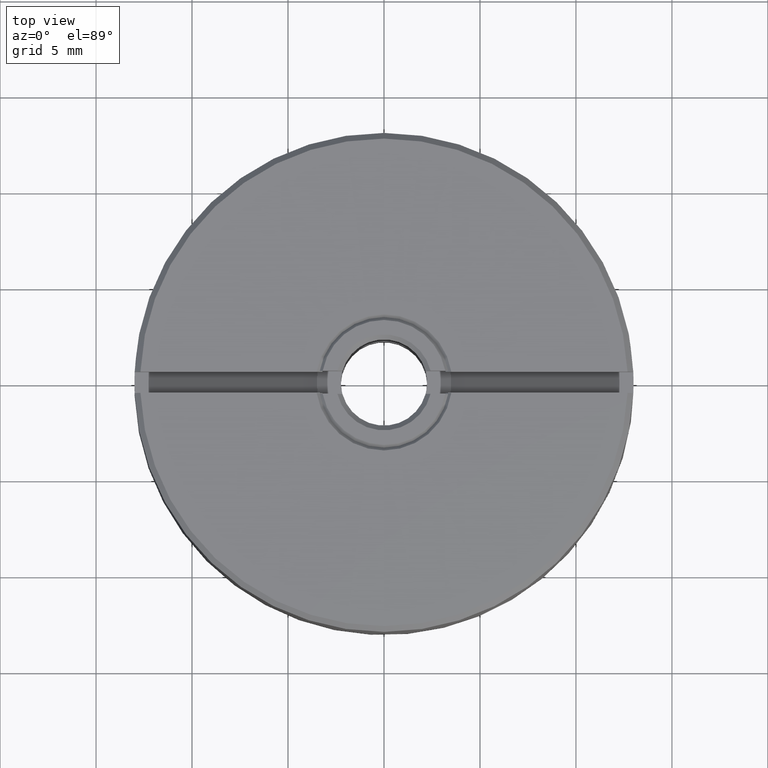
[diagram: clean part render]
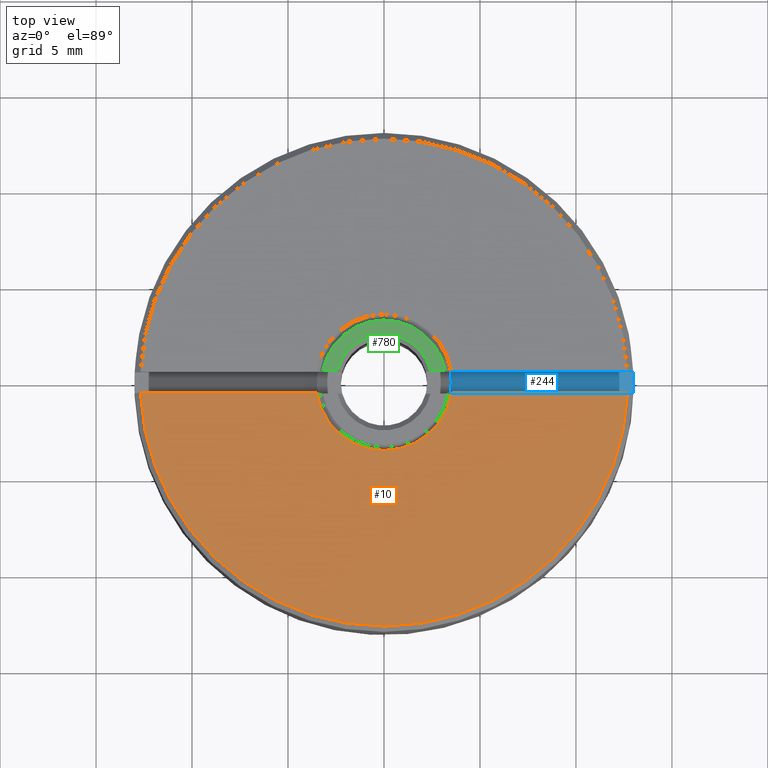
[diagram: same view with three faces highlighted in distinct colors, each labeled with its STEP entity id]
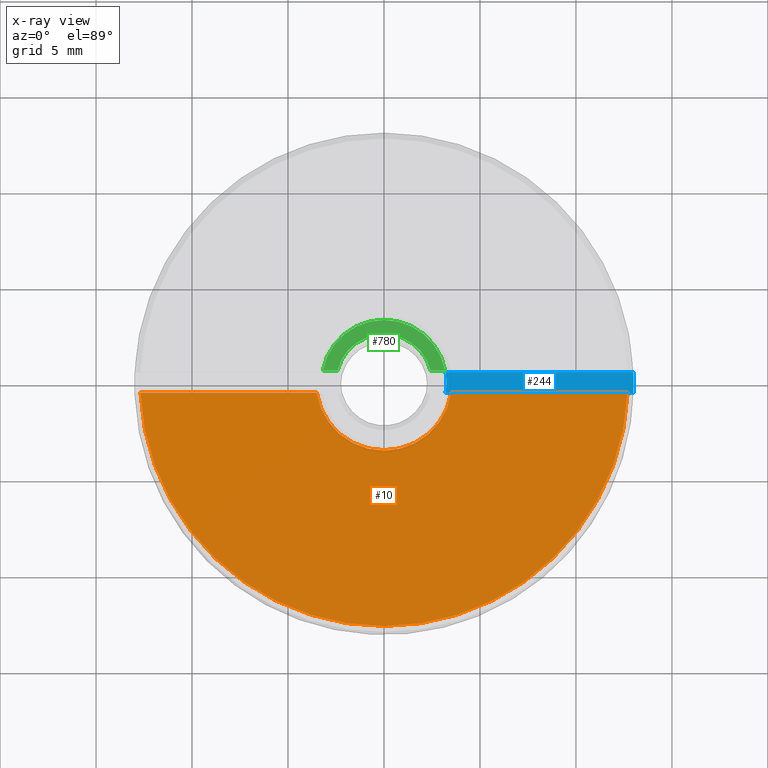
[diagram: x-ray of the same camera — body ghosted, the three highlighted faces saturated]
A machine part, top view with three faces highlighted in distinct colors.
The next image is the same camera in x-ray (body ghosted, the three faces saturated) — at least one of them is partly hidden behind the body in this view.
Their STEP definitions:

[orange] entity #10 — the highlighted planar face has unit normal (0, 0, 1).
#10 = ADVANCED_FACE ( 'NONE', ( #419 ), #764, .T. ) ;
#20 = EDGE_CURVE ( 'NONE', #755, #1031, #1269, .T. ) ;
#24 = CARTESIAN_POINT ( 'NONE',  ( 0.000000000000000000, 0.000000000000000000, 5.000000000000000000 ) ) ;
#50 = ORIENTED_EDGE ( 'NONE', *, *, #1310, .F. ) ;
#51 = CARTESIAN_POINT ( 'NONE',  ( 0.000000000000000000, -0.5500000000000000444, 5.000000000000000000 ) ) ;
#131 = ORIENTED_EDGE ( 'NONE', *, *, #561, .T. ) ;
#211 = VECTOR ( 'NONE', #1148, 1000.000000000000000 ) ;
#289 = AXIS2_PLACEMENT_3D ( 'NONE', #706, #1570, #463 ) ;
#314 = CIRCLE ( 'NONE', #423, 3.550000000075214768 ) ;
#381 = EDGE_LOOP ( 'NONE', ( #416, #131, #1395, #50 ) ) ;
#416 = ORIENTED_EDGE ( 'NONE', *, *, #20, .T. ) ;
#419 = FACE_OUTER_BOUND ( 'NONE', #381, .T. ) ;
#421 = VERTEX_POINT ( 'NONE', #1292 ) ;
#423 = AXIS2_PLACEMENT_3D ( 'NONE', #596, #1592, #833 ) ;
#463 = DIRECTION ( 'NONE',  ( -1.000000000000000000, 0.000000000000000000, 0.000000000000000000 ) ) ;
#496 = VERTEX_POINT ( 'NONE', #686 ) ;
#561 = EDGE_CURVE ( 'NONE', #1031, #421, #314, .T. ) ;
#596 = CARTESIAN_POINT ( 'NONE',  ( 0.000000000000000000, 0.000000000000000000, 4.999999999995452526 ) ) ;
#624 = AXIS2_PLACEMENT_3D ( 'NONE', #24, #888, #788 ) ;
#631 = CARTESIAN_POINT ( 'NONE',  ( 12.68808496188450441, -0.5500000000000000444, 5.000000000000001776 ) ) ;
#686 = CARTESIAN_POINT ( 'NONE',  ( -12.68808496188450619, -0.5500000000000000444, 5.000000000000000888 ) ) ;
#706 = CARTESIAN_POINT ( 'NONE',  ( 0.000000000000000000, 0.000000000000000000, 5.000000000000001776 ) ) ;
#755 = VERTEX_POINT ( 'NONE', #631 ) ;
#764 = PLANE ( 'NONE',  #624 ) ;
#788 = DIRECTION ( 'NONE',  ( 1.000000000000000000, 0.000000000000000000, -0.000000000000000000 ) ) ;
#799 = DIRECTION ( 'NONE',  ( -1.000000000000000000, -0.000000000000000000, 0.000000000000000000 ) ) ;
#830 = EDGE_CURVE ( 'NONE', #421, #496, #1512, .T. ) ;
#833 = DIRECTION ( 'NONE',  ( 1.000000000000000000, 0.000000000000000000, 0.000000000000000000 ) ) ;
#888 = DIRECTION ( 'NONE',  ( 0.000000000000000000, 0.000000000000000000, 1.000000000000000000 ) ) ;
#918 = CARTESIAN_POINT ( 'NONE',  ( 0.000000000000000000, -0.5500000000000000444, 5.000000000000000000 ) ) ;
#952 = CIRCLE ( 'NONE', #289, 12.69999999999998863 ) ;
#970 = VECTOR ( 'NONE', #799, 1000.000000000000000 ) ;
#1031 = VERTEX_POINT ( 'NONE', #1055 ) ;
#1055 = CARTESIAN_POINT ( 'NONE',  ( 3.507135583411575830, -0.5500000000000000444, 4.999999999981033838 ) ) ;
#1148 = DIRECTION ( 'NONE',  ( -1.000000000000000000, -0.000000000000000000, 0.000000000000000000 ) ) ;
#1269 = LINE ( 'NONE', #918, #970 ) ;
#1292 = CARTESIAN_POINT ( 'NONE',  ( -3.507135583411575830, -0.5500000000000000444, 4.999999999981033838 ) ) ;
#1310 = EDGE_CURVE ( 'NONE', #755, #496, #952, .T. ) ;
#1395 = ORIENTED_EDGE ( 'NONE', *, *, #830, .T. ) ;
#1512 = LINE ( 'NONE', #51, #211 ) ;
#1570 = DIRECTION ( 'NONE',  ( 0.000000000000000000, 0.000000000000000000, -1.000000000000000000 ) ) ;
#1592 = DIRECTION ( 'NONE',  ( -0.000000000000000000, 0.000000000000000000, -1.000000000000000000 ) ) ;

[blue] entity #244 — the highlighted planar face has unit normal (0, 0, 1).
#61 = ORIENTED_EDGE ( 'NONE', *, *, #1184, .T. ) ;
#69 = LINE ( 'NONE', #1323, #1016 ) ;
#78 = VERTEX_POINT ( 'NONE', #264 ) ;
#149 = DIRECTION ( 'NONE',  ( -1.000000000000000000, 1.687538997430237941E-14, 0.000000000000000000 ) ) ;
#151 = ORIENTED_EDGE ( 'NONE', *, *, #234, .T. ) ;
#234 = EDGE_CURVE ( 'NONE', #1114, #78, #69, .T. ) ;
#244 = ADVANCED_FACE ( 'NONE', ( #1533 ), #1544, .T. ) ;
#264 = CARTESIAN_POINT ( 'NONE',  ( 3.203123475609394255, 0.5500000000000000444, 4.000000000000000000 ) ) ;
#274 = CARTESIAN_POINT ( 'NONE',  ( 12.98836017363239037, -0.5500000000000000444, 4.000000000000000000 ) ) ;
#301 = DIRECTION ( 'NONE',  ( 0.000000000000000000, 0.000000000000000000, 1.000000000000000000 ) ) ;
#312 = AXIS2_PLACEMENT_3D ( 'NONE', #1413, #301, #1056 ) ;
#319 = CIRCLE ( 'NONE', #1567, 13.00000000000000355 ) ;
#411 = DIRECTION ( 'NONE',  ( 1.000000000000000000, 0.000000000000000000, 0.000000000000000000 ) ) ;
#417 = CARTESIAN_POINT ( 'NONE',  ( 0.000000000000000000, 0.000000000000000000, 4.000000000000000000 ) ) ;
#522 = DIRECTION ( 'NONE',  ( 0.000000000000000000, 0.000000000000000000, 1.000000000000000000 ) ) ;
#534 = LINE ( 'NONE', #1517, #1079 ) ;
#557 = CARTESIAN_POINT ( 'NONE',  ( 12.98836017363239037, 0.5500000000000000444, 4.000000000000000000 ) ) ;
#571 = DIRECTION ( 'NONE',  ( 1.000000000000000000, 0.000000000000000000, 0.000000000000000000 ) ) ;
#627 = EDGE_CURVE ( 'NONE', #78, #1123, #917, .T. ) ;
#630 = ORIENTED_EDGE ( 'NONE', *, *, #627, .T. ) ;
#792 = EDGE_LOOP ( 'NONE', ( #1057, #151, #630, #61 ) ) ;
#832 = VERTEX_POINT ( 'NONE', #274 ) ;
#917 = CIRCLE ( 'NONE', #1350, 3.250000000000000888 ) ;
#959 = DIRECTION ( 'NONE',  ( 0.000000000000000000, 0.000000000000000000, -1.000000000000000000 ) ) ;
#1016 = VECTOR ( 'NONE', #1044, 1000.000000000000000 ) ;
#1042 = CARTESIAN_POINT ( 'NONE',  ( 3.203123475609394255, -0.5500000000000000444, 4.000000000000000888 ) ) ;
#1044 = DIRECTION ( 'NONE',  ( -1.000000000000000000, -0.000000000000000000, -0.000000000000000000 ) ) ;
#1056 = DIRECTION ( 'NONE',  ( 1.000000000000000000, 0.000000000000000000, -0.000000000000000000 ) ) ;
#1057 = ORIENTED_EDGE ( 'NONE', *, *, #1498, .T. ) ;
#1079 = VECTOR ( 'NONE', #411, 1000.000000000000000 ) ;
#1114 = VERTEX_POINT ( 'NONE', #557 ) ;
#1123 = VERTEX_POINT ( 'NONE', #1042 ) ;
#1184 = EDGE_CURVE ( 'NONE', #1123, #832, #534, .T. ) ;
#1186 = CARTESIAN_POINT ( 'NONE',  ( 0.000000000000000000, 0.000000000000000000, 4.000000000000000888 ) ) ;
#1323 = CARTESIAN_POINT ( 'NONE',  ( -12.98836017363239037, 0.5500000000000000444, 4.000000000000000000 ) ) ;
#1350 = AXIS2_PLACEMENT_3D ( 'NONE', #1186, #959, #571 ) ;
#1413 = CARTESIAN_POINT ( 'NONE',  ( 0.000000000000000000, 0.000000000000000000, 4.000000000000000000 ) ) ;
#1498 = EDGE_CURVE ( 'NONE', #832, #1114, #319, .T. ) ;
#1517 = CARTESIAN_POINT ( 'NONE',  ( -12.98836017363239037, -0.5500000000000000444, 4.000000000000000888 ) ) ;
#1533 = FACE_OUTER_BOUND ( 'NONE', #792, .T. ) ;
#1544 = PLANE ( 'NONE',  #312 ) ;
#1567 = AXIS2_PLACEMENT_3D ( 'NONE', #417, #522, #149 ) ;

[green] entity #780 — the highlighted planar face has unit normal (0, 0, 1).
#43 = CARTESIAN_POINT ( 'NONE',  ( 0.000000000000000000, 0.000000000000000000, 4.999999999943156581 ) ) ;
#117 = VERTEX_POINT ( 'NONE', #1173 ) ;
#133 = CIRCLE ( 'NONE', #1403, 3.249999999979991117 ) ;
#174 = DIRECTION ( 'NONE',  ( 1.000000000000000000, 0.000000000000000000, 0.000000000000000000 ) ) ;
#258 = PLANE ( 'NONE',  #479 ) ;
#294 = CARTESIAN_POINT ( 'NONE',  ( -3.194135250687610394, 0.6000000000000000888, 4.999999999971578291 ) ) ;
#300 = DIRECTION ( 'NONE',  ( 1.000000000000000000, 8.881784197001252323E-16, 0.000000000000000000 ) ) ;
#397 = DIRECTION ( 'NONE',  ( 0.000000000000000000, 0.000000000000000000, -1.000000000000000000 ) ) ;
#479 = AXIS2_PLACEMENT_3D ( 'NONE', #1002, #609, #1488 ) ;
#507 = DIRECTION ( 'NONE',  ( 1.000000000000000000, 0.000000000000000000, -0.000000000000000000 ) ) ;
#546 = LINE ( 'NONE', #804, #1305 ) ;
#570 = ORIENTED_EDGE ( 'NONE', *, *, #893, .F. ) ;
#580 = AXIS2_PLACEMENT_3D ( 'NONE', #1402, #1285, #300 ) ;
#609 = DIRECTION ( 'NONE',  ( 0.000000000000000000, 0.000000000000000000, 1.000000000000000000 ) ) ;
#625 = LINE ( 'NONE', #760, #766 ) ;
#654 = CIRCLE ( 'NONE', #580, 2.499999999940882844 ) ;
#760 = CARTESIAN_POINT ( 'NONE',  ( 0.000000000000000000, 0.6000000000000000888, 5.000000000000000000 ) ) ;
#766 = VECTOR ( 'NONE', #507, 1000.000000000000000 ) ;
#780 = ADVANCED_FACE ( 'NONE', ( #1249 ), #258, .T. ) ;
#804 = CARTESIAN_POINT ( 'NONE',  ( -50000.00000000001455, 0.6000000000000000888, 5.000000000000000000 ) ) ;
#883 = VERTEX_POINT ( 'NONE', #294 ) ;
#893 = EDGE_CURVE ( 'NONE', #883, #1474, #133, .T. ) ;
#1002 = CARTESIAN_POINT ( 'NONE',  ( 0.000000000000000000, 0.000000000000000000, 5.000000000000000000 ) ) ;
#1032 = DIRECTION ( 'NONE',  ( -1.000000000000000000, 0.000000000000000000, 0.000000000000000000 ) ) ;
#1065 = ORIENTED_EDGE ( 'NONE', *, *, #1333, .T. ) ;
#1109 = ORIENTED_EDGE ( 'NONE', *, *, #1608, .T. ) ;
#1113 = EDGE_CURVE ( 'NONE', #117, #1131, #654, .T. ) ;
#1125 = EDGE_LOOP ( 'NONE', ( #1109, #1449, #1065, #570 ) ) ;
#1131 = VERTEX_POINT ( 'NONE', #1543 ) ;
#1141 = CARTESIAN_POINT ( 'NONE',  ( 3.194135250687610394, 0.6000000000000000888, 4.999999999971578291 ) ) ;
#1173 = CARTESIAN_POINT ( 'NONE',  ( -2.426932219853086714, 0.6000000000000000888, 4.999999999954479968 ) ) ;
#1249 = FACE_OUTER_BOUND ( 'NONE', #1125, .T. ) ;
#1285 = DIRECTION ( 'NONE',  ( -0.000000000000000000, 0.000000000000000000, -1.000000000000000000 ) ) ;
#1305 = VECTOR ( 'NONE', #174, 1000.000000000000000 ) ;
#1333 = EDGE_CURVE ( 'NONE', #1131, #1474, #625, .T. ) ;
#1402 = CARTESIAN_POINT ( 'NONE',  ( 0.000000000000000000, 0.000000000000000000, 4.999999999943156581 ) ) ;
#1403 = AXIS2_PLACEMENT_3D ( 'NONE', #43, #397, #1032 ) ;
#1449 = ORIENTED_EDGE ( 'NONE', *, *, #1113, .T. ) ;
#1474 = VERTEX_POINT ( 'NONE', #1141 ) ;
#1488 = DIRECTION ( 'NONE',  ( 1.000000000000000000, 0.000000000000000000, -0.000000000000000000 ) ) ;
#1543 = CARTESIAN_POINT ( 'NONE',  ( 2.426932219870699736, 0.6000000000000000888, 4.999999999971578291 ) ) ;
#1608 = EDGE_CURVE ( 'NONE', #883, #117, #546, .T. ) ;